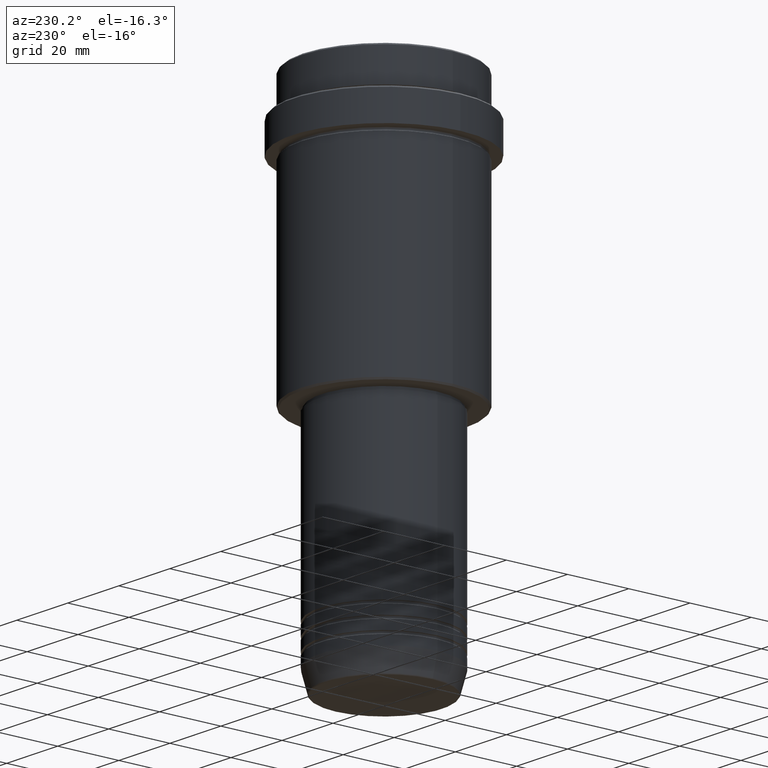
[diagram: clean part render]
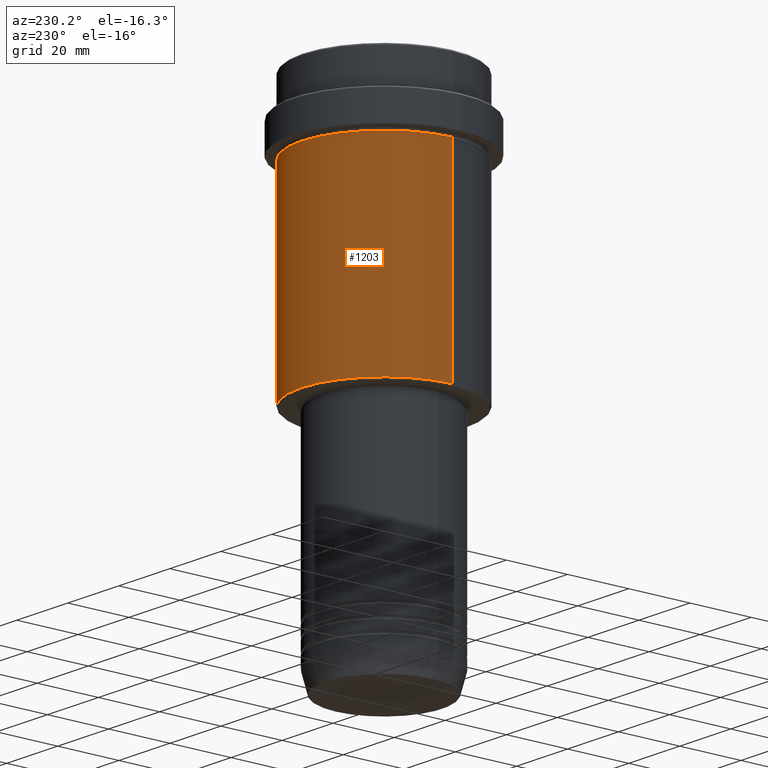
[diagram: same view with one face highlighted and labeled with its STEP entity id]
A machine part, auxiliary view. The second image highlights one B-rep face of the part: STEP entity #1203.
In plain terms, the highlighted cylindrical surface (partial cylindrical patch) has radius 27 mm, axis along (-0, -0, 1).
Its self-contained STEP definition (entity closure, byte-faithful):
#2 = CARTESIAN_POINT ( 'NONE',  ( 0.000000000000000000, 0.000000000000000000, 0.000000000000000000 ) ) ;
#50 = LINE ( 'NONE', #1161, #846 ) ;
#84 = ORIENTED_EDGE ( 'NONE', *, *, #1120, .T. ) ;
#309 = DIRECTION ( 'NONE',  ( -0.000000000000000000, -0.000000000000000000, 1.000000000000000000 ) ) ;
#324 = LINE ( 'NONE', #1409, #969 ) ;
#331 = ORIENTED_EDGE ( 'NONE', *, *, #1263, .T. ) ;
#438 = EDGE_LOOP ( 'NONE', ( #331, #84, #1125, #548 ) ) ;
#470 = AXIS2_PLACEMENT_3D ( 'NONE', #1087, #865, #770 ) ;
#527 = EDGE_CURVE ( 'NONE', #644, #629, #50, .T. ) ;
#545 = CARTESIAN_POINT ( 'NONE',  ( 26.99999999999999645, 0.000000000000000000, -87.49999999999995737 ) ) ;
#546 = DIRECTION ( 'NONE',  ( -0.000000000000000000, -0.000000000000000000, 1.000000000000000000 ) ) ;
#548 = ORIENTED_EDGE ( 'NONE', *, *, #527, .F. ) ;
#590 = EDGE_CURVE ( 'NONE', #629, #794, #1143, .T. ) ;
#629 = VERTEX_POINT ( 'NONE', #1411 ) ;
#641 = AXIS2_PLACEMENT_3D ( 'NONE', #812, #1392, #754 ) ;
#644 = VERTEX_POINT ( 'NONE', #545 ) ;
#713 = VERTEX_POINT ( 'NONE', #1384 ) ;
#754 = DIRECTION ( 'NONE',  ( 1.000000000000000000, 0.000000000000000000, 0.000000000000000000 ) ) ;
#770 = DIRECTION ( 'NONE',  ( -1.000000000000000000, 0.000000000000000000, 0.000000000000000000 ) ) ;
#794 = VERTEX_POINT ( 'NONE', #1122 ) ;
#812 = CARTESIAN_POINT ( 'NONE',  ( 0.000000000000000000, 0.000000000000000000, -23.00000000000000000 ) ) ;
#818 = DIRECTION ( 'NONE',  ( -0.000000000000000000, -0.000000000000000000, 1.000000000000000000 ) ) ;
#846 = VECTOR ( 'NONE', #818, 1000.000000000000000 ) ;
#865 = DIRECTION ( 'NONE',  ( -0.000000000000000000, -0.000000000000000000, 1.000000000000000000 ) ) ;
#969 = VECTOR ( 'NONE', #309, 1000.000000000000000 ) ;
#1087 = CARTESIAN_POINT ( 'NONE',  ( 0.000000000000000000, 0.000000000000000000, -87.49999999999995737 ) ) ;
#1120 = EDGE_CURVE ( 'NONE', #713, #794, #324, .T. ) ;
#1122 = CARTESIAN_POINT ( 'NONE',  ( -26.99999999999999645, 3.306546357697853339E-15, -23.00000000000000000 ) ) ;
#1125 = ORIENTED_EDGE ( 'NONE', *, *, #590, .F. ) ;
#1143 = CIRCLE ( 'NONE', #641, 26.99999999999999645 ) ;
#1161 = CARTESIAN_POINT ( 'NONE',  ( 26.99999999999999645, 0.000000000000000000, 0.000000000000000000 ) ) ;
#1172 = CYLINDRICAL_SURFACE ( 'NONE', #1403, 26.99999999999999645 ) ;
#1203 = ADVANCED_FACE ( 'NONE', ( #1307 ), #1172, .T. ) ;
#1263 = EDGE_CURVE ( 'NONE', #644, #713, #1353, .T. ) ;
#1297 = DIRECTION ( 'NONE',  ( 1.000000000000000000, 0.000000000000000000, 0.000000000000000000 ) ) ;
#1307 = FACE_OUTER_BOUND ( 'NONE', #438, .T. ) ;
#1353 = CIRCLE ( 'NONE', #470, 26.99999999999999645 ) ;
#1384 = CARTESIAN_POINT ( 'NONE',  ( -26.99999999999999645, 3.306546357697853339E-15, -87.49999999999995737 ) ) ;
#1392 = DIRECTION ( 'NONE',  ( -0.000000000000000000, -0.000000000000000000, 1.000000000000000000 ) ) ;
#1403 = AXIS2_PLACEMENT_3D ( 'NONE', #2, #546, #1297 ) ;
#1409 = CARTESIAN_POINT ( 'NONE',  ( -26.99999999999999645, 3.306546357697853339E-15, 0.000000000000000000 ) ) ;
#1411 = CARTESIAN_POINT ( 'NONE',  ( 26.99999999999999645, 0.000000000000000000, -23.00000000000000000 ) ) ;